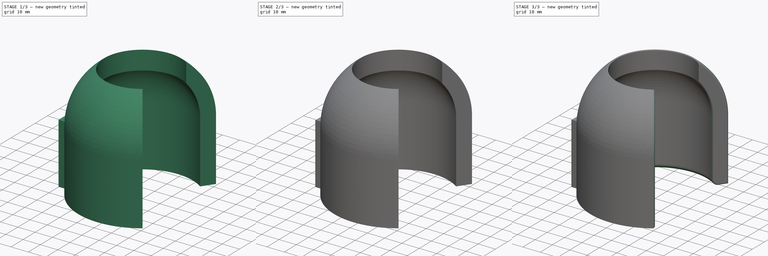
[diagram: build sequence overview — one tinted view per stage of 3, left to right]
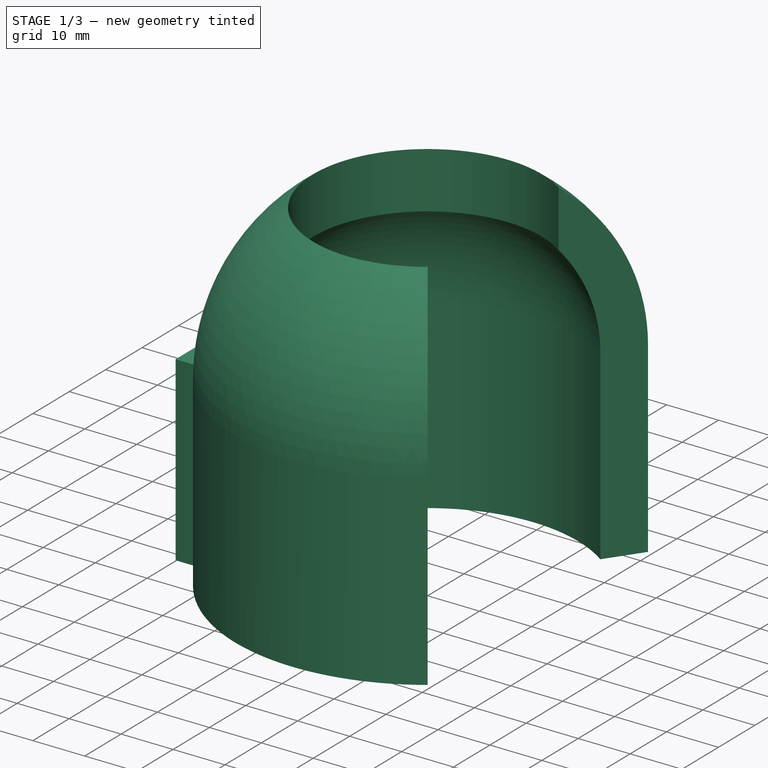
[diagram: stage 1 of 3 — iso view after this stage's code; geometry added in this stage tinted green]
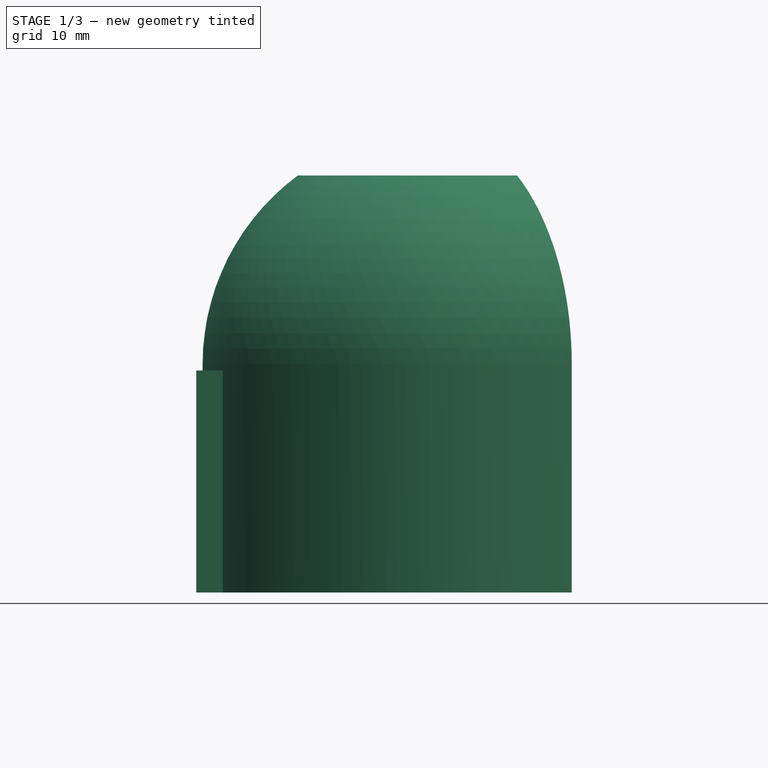
[diagram: stage 1 of 3 — front view after this stage's code; geometry added in this stage tinted green]
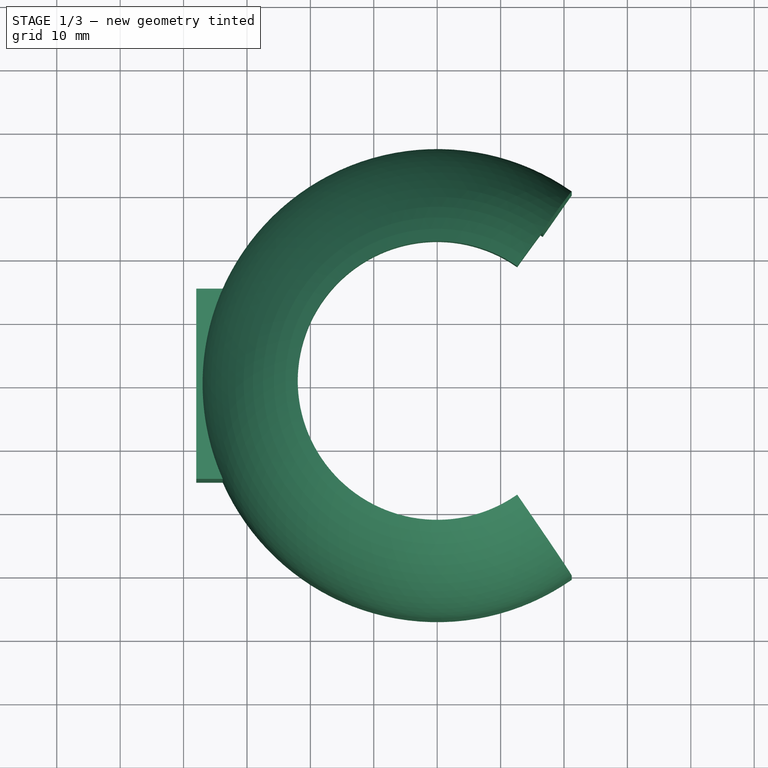
[diagram: stage 1 of 3 — top view after this stage's code; geometry added in this stage tinted green]
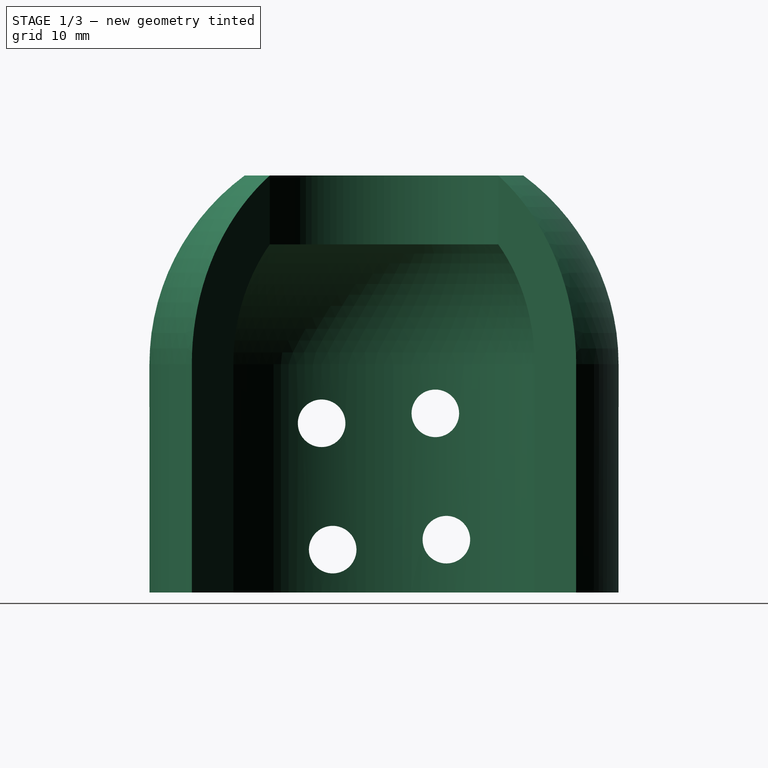
[diagram: stage 1 of 3 — right view after this stage's code; geometry added in this stage tinted green]
FCSTD DOCUMENT  (FreeCAD 0.20R29177 +426 (Git))
Label: maglite_car_holder
License: All rights reserved
LicenseURL: http://en.wikipedia.org/wiki/All_rights_reserved
objects: Sketcher::SketchObject×4, PartDesign::Fillet×4, PartDesign::Pad×2, PartDesign::Revolution×1, PartDesign::Pocket×1, PartDesign::Body×1
note: 21 computed .brp shape members not serialized (recipe doc carries the construction recipe); baked Part::Feature solids carry a one-line shape summary decoded from their .brp

FEATURE [Sketcher::SketchObject] Sketch
  FullyConstrained = true
  MapMode = 5
  Placement = pos=(0,0,0) rot=(1,0,0;1.5708rad)
  Support = -> [XZ_Plane]
  sketch-geometry (9):
    g0: LineSegment StartX=-37 StartY=36 StartZ=0 EndX=-37 EndY=0 EndZ=0
    g1: LineSegment StartX=-37 StartY=0 StartZ=0 EndX=-29 EndY=0 EndZ=0
    g2: LineSegment StartX=-29 StartY=0 StartZ=0 EndX=-29 EndY=36 EndZ=0
    g3: LineSegment StartX=-22 StartY=65.7489 StartZ=0 EndX=-22 EndY=54.8944 EndZ=0
    g4: ArcOfCircle CenterX=0 CenterY=36 CenterZ=0 NormalX=0 NormalY=0 NormalZ=1 AngleXU=0 Radius=29 StartAngle=2.43199 EndAngle=3.14159
    g5: ArcOfCircle CenterX=0 CenterY=36 CenterZ=0 NormalX=0 NormalY=0 NormalZ=1 AngleXU=0 Radius=37 StartAngle=2.20756 EndAngle=3.14159
    g6: LineSegment StartX=-29 StartY=36 StartZ=0 EndX=0 EndY=36 EndZ=0
    g7: LineSegment StartX=0 StartY=36 StartZ=0 EndX=-37 EndY=36 EndZ=0
    g8: LineSegment StartX=-22 StartY=54.8944 StartZ=0 EndX=0 EndY=54.8944 EndZ=0
  constraints (25):
    c: PointOnObject(g0,g-1)
    c: Vertical(g0)
    c: Coincident(g1,g0)
    c: PointOnObject(g1,g-1)
    c: Coincident(g2,g1)
    c: DistanceX(g1,g-1) = 29
    c: Vertical(g3)
    c: PointOnObject(g4,g-2)
    c: Coincident(g4,g3)
    c: PointOnObject(g5,g-2)
    c: Coincident(g5,g3)
    c: Coincident(g6,g2)
    c: Coincident(g6,g4)
    c: Coincident(g7,g5)
    c: Coincident(g7,g0)
    c: Tangent(g4,g2) = 1.5708
    c: Tangent(g5,g0) = -1.5708
    c: Coincident(g8,g3)
    c: PointOnObject(g8,g-2)
    c: Horizontal(g8)
    c: DistanceX(g8,g8) = 22
    c: Tangent(g6,g7)
    c: DistanceY(g2,g2) = 36
    c: DistanceY(g4,g8) = 18.8944
    c: DistanceX(g1,g1) = 8
FEATURE [PartDesign::Revolution] Revolution
  Angle = 250
  Axis = (0,-2e-16,1)
  Base = (0,0,0)
  Midplane = true
  Placement = pos=(0,0,0) rot=(1,0,0;1.5708rad)
  Profile = -> Sketch
  ReferenceAxis = -> Sketch [V_Axis]
FEATURE [Sketcher::SketchObject] Sketch001
  ExternalGeometry = -> [Revolution]
  FullyConstrained = true
  MapMode = 5
  Placement = pos=(0,0,0) rot=(1,0,0;3.14159rad)
  Support = -> [Revolution]
  sketch-geometry (5):
    g0: LineSegment StartX=-38 StartY=15 StartZ=0 EndX=-33.8231 EndY=15 EndZ=0
    g1: LineSegment StartX=-33.8231 StartY=15 StartZ=0 EndX=-33.8231 EndY=-15 EndZ=0
    g2: LineSegment StartX=-33.8231 StartY=-15 StartZ=0 EndX=-38 EndY=-15 EndZ=0
    g3: LineSegment StartX=-38 StartY=-15 StartZ=0 EndX=-38 EndY=15 EndZ=0
    g4: LineSegment StartX=-37 StartY=0 StartZ=0 EndX=-38 EndY=0 EndZ=0
  constraints (15):
    c: Coincident(g0,g1)
    c: Coincident(g1,g2)
    c: Coincident(g2,g3)
    c: Coincident(g3,g0)
    c: Horizontal(g0)
    c: Horizontal(g2)
    c: Vertical(g1)
    c: Vertical(g3)
    c: PointOnObject(g1,g-3)
    c: PointOnObject(g0,g-3)
    c: DistanceY(g3,g3) = 30
    c: PointOnObject(g4,g-3)
    c: PointOnObject(g4,g3)
    c: Tangent(g4,g-1)
    c: DistanceX(g4,g4) = 1
FEATURE [PartDesign::Pad] Pad
  BaseFeature = -> Revolution
  Direction = (0,2e-16,-1)
  Length = 35
  Length2 = 10
  Placement = pos=(0,0,0) rot=(1,0,0;1.5708rad)
  Profile = -> Sketch001
  ReferenceAxis = -> Sketch001 [N_Axis]
  Reversed = true
  Type = 0
FEATURE [Sketcher::SketchObject] Sketch002
  ExternalGeometry = -> [Pad]
  FullyConstrained = true
  MapMode = 5
  Placement = pos=(-38,0,0) rot=(0.707107,0,-0.707107;3.14159rad)
  Support = -> [Pad]
  expr: Constraints[26] = 180 - 5
  sketch-geometry (12):
    g0: Circle CenterX=-26.6775 CenterY=9.83731 CenterZ=0 NormalX=0 NormalY=0 NormalZ=1 AngleXU=0 Radius=3.75
    g1: Circle CenterX=-6.75365 CenterY=8.09419 CenterZ=0 NormalX=0 NormalY=0 NormalZ=1 AngleXU=0 Radius=3.75
    g2: Circle CenterX=-28.2463 CenterY=-8.09419 CenterZ=0 NormalX=0 NormalY=0 NormalZ=1 AngleXU=0 Radius=3.75
    g3: Circle CenterX=-8.32245 CenterY=-9.83731 CenterZ=0 NormalX=0 NormalY=0 NormalZ=1 AngleXU=0 Radius=3.75
    g4: LineSegment StartX=-26.6775 StartY=9.83731 StartZ=0 EndX=-6.75365 EndY=8.09419 EndZ=0
    g5: LineSegment StartX=-6.75365 StartY=8.09419 StartZ=0 EndX=-8.32245 EndY=-9.83731 EndZ=0
    g6: LineSegment StartX=-8.32245 StartY=-9.83731 StartZ=0 EndX=-28.2463 EndY=-8.09419 EndZ=0
    g7: LineSegment StartX=-28.2463 StartY=-8.09419 StartZ=0 EndX=-26.6775 EndY=9.83731 EndZ=0
    g8: LineSegment StartX=-27.4619 StartY=0.871557 StartZ=0 EndX=-7.53805 EndY=-0.871557 EndZ=0
    g9: LineSegment StartX=-17.5 StartY=15 StartZ=0 EndX=-17.5 EndY=-15 EndZ=0
    g10: LineSegment StartX=-35 StartY=-9.1e-15 StartZ=0 EndX=0 EndY=-2.4e-15 EndZ=0
    g11: GeomPoint X=-17.5 Y=-5.8e-15 Z=0
  constraints (27):
    c: Coincident(g4,g5)
    c: Coincident(g5,g6)
    c: Coincident(g6,g7)
    c: Coincident(g7,g4)
    c: Coincident(g4,g0)
    c: Coincident(g5,g3)
    c: Coincident(g2,g6)
    c: Coincident(g1,g4)
    c: Equal(g0,g1)
    c: Equal(g1,g3)
    c: Equal(g3,g2)
    c: Diameter(g0) = 7.5
    c: Perpendicular(g6,g7)
    c: Parallel(g7,g5)
    c: Parallel(g4,g6)
    c: Distance(g4) = 20
    c: Distance(g7) = 18
    c: Symmetric(g1,g3,g8)
    c: Symmetric(g0,g2,g8)
    c: Symmetric(g-4,g-3,g9)
    c: Symmetric(g-5,g-5,g9)
    c: Symmetric(g-5,g-3,g10)
    c: Symmetric(g-5,g-4,g10)
    c: Symmetric(g8,g8,g11)
    c: PointOnObject(g11,g10)
    c: PointOnObject(g11,g9)
    c: Angle(g10,g8) = 3.05433
FEATURE [PartDesign::Pocket] Pocket
  BaseFeature = -> Pad
  Direction = (1,0,2e-16)
  Length = 5
  Length2 = 5
  Placement = pos=(0,0,0) rot=(1,0,0;1.5708rad)
  Profile = -> Sketch002
  ReferenceAxis = -> Sketch002 [N_Axis]
  Type = 2
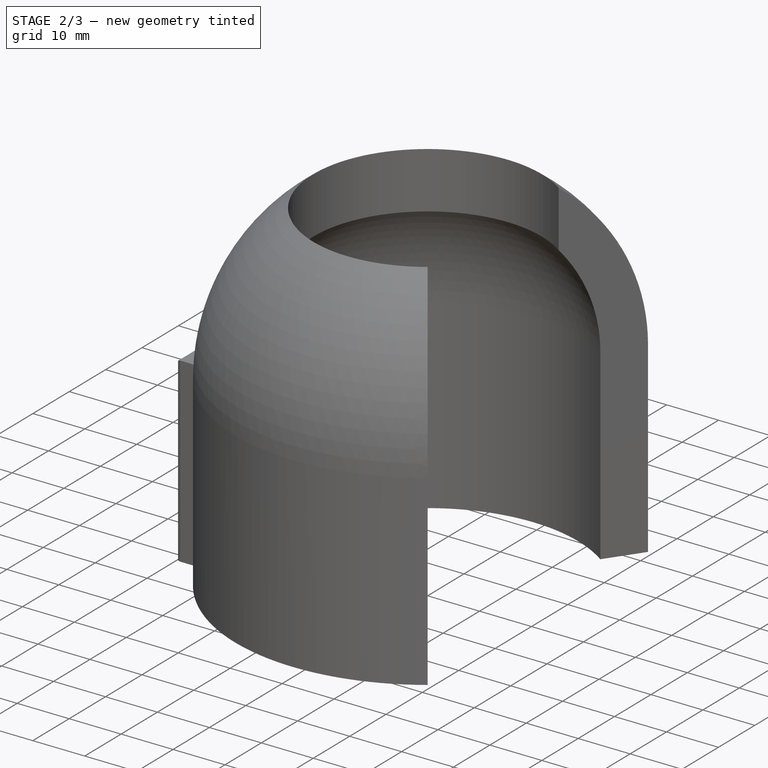
[diagram: stage 2 of 3 — iso view after this stage's code; geometry added in this stage tinted green]
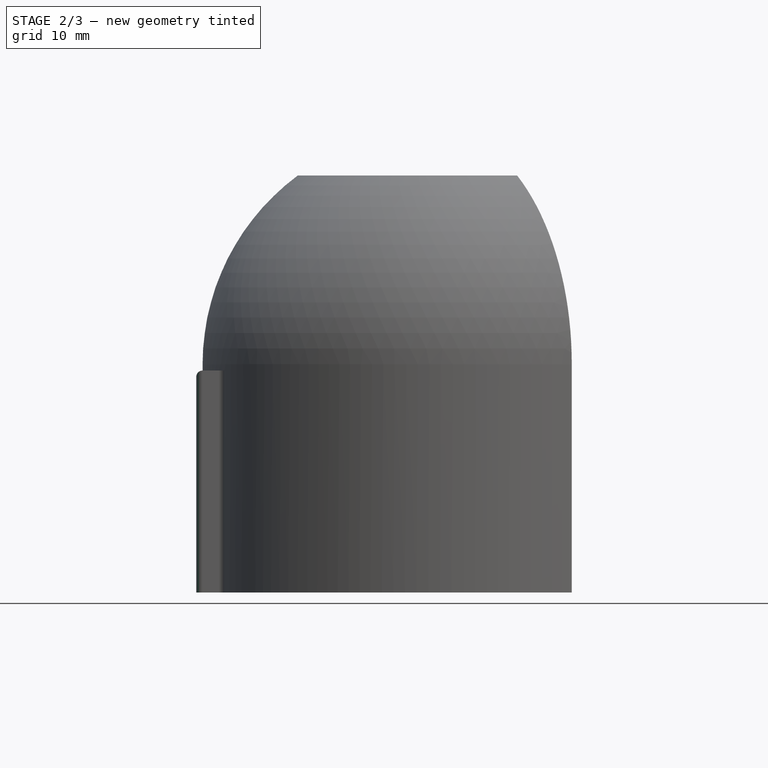
[diagram: stage 2 of 3 — front view after this stage's code; geometry added in this stage tinted green]
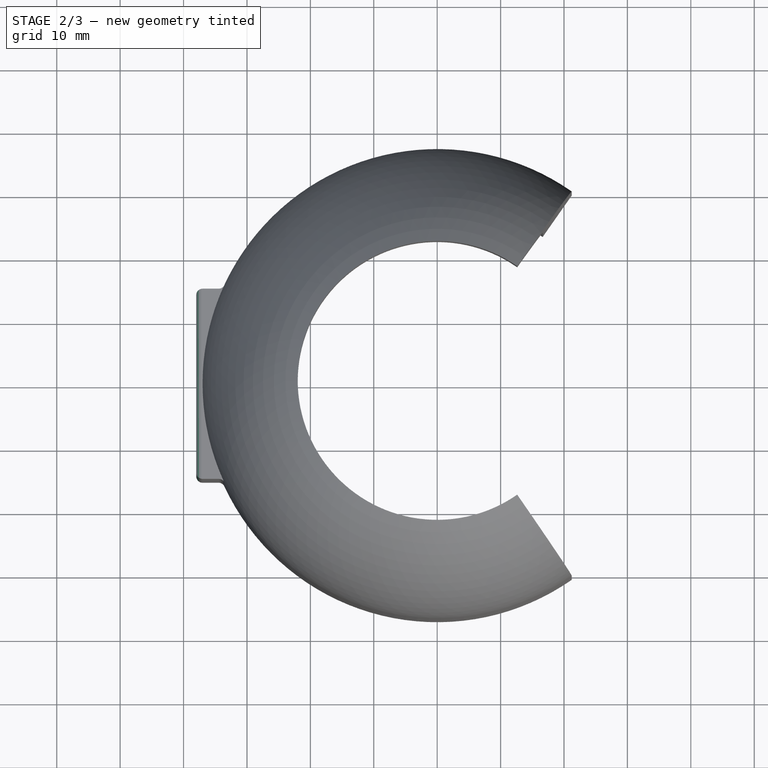
[diagram: stage 2 of 3 — top view after this stage's code; geometry added in this stage tinted green]
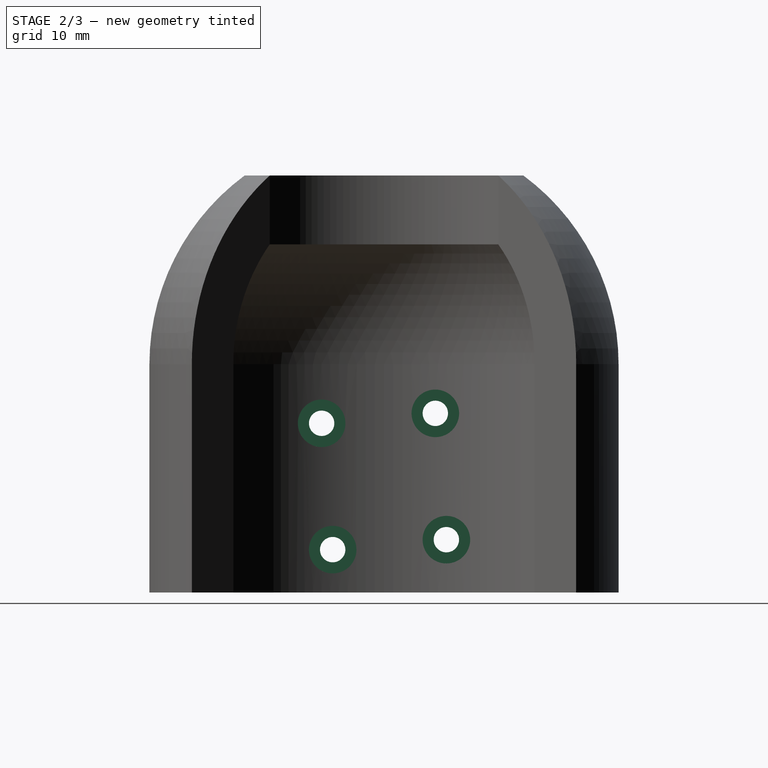
[diagram: stage 2 of 3 — right view after this stage's code; geometry added in this stage tinted green]
FEATURE [Sketcher::SketchObject] Sketch003
  ExternalGeometry = -> [Pocket]
  FullyConstrained = true
  MapMode = 5
  Placement = pos=(-38,0,0) rot=(0.707107,0,-0.707107;3.14159rad)
  Support = -> [Pocket]
  sketch-geometry (8):
    g0: Circle CenterX=-26.6775 CenterY=9.83731 CenterZ=0 NormalX=0 NormalY=0 NormalZ=1 AngleXU=0 Radius=3.75
    g1: Circle CenterX=-26.6775 CenterY=9.83731 CenterZ=0 NormalX=0 NormalY=0 NormalZ=1 AngleXU=0 Radius=2
    g2: Circle CenterX=-6.75365 CenterY=8.09419 CenterZ=0 NormalX=0 NormalY=0 NormalZ=1 AngleXU=0 Radius=2
    g3: Circle CenterX=-6.75365 CenterY=8.09419 CenterZ=0 NormalX=0 NormalY=0 NormalZ=1 AngleXU=0 Radius=3.75
    g4: Circle CenterX=-28.2463 CenterY=-8.09419 CenterZ=0 NormalX=0 NormalY=0 NormalZ=1 AngleXU=0 Radius=2
    g5: Circle CenterX=-28.2463 CenterY=-8.09419 CenterZ=0 NormalX=0 NormalY=0 NormalZ=1 AngleXU=0 Radius=3.75
    g6: Circle CenterX=-8.32245 CenterY=-9.83731 CenterZ=0 NormalX=0 NormalY=0 NormalZ=1 AngleXU=0 Radius=2
    g7: Circle CenterX=-8.32245 CenterY=-9.83731 CenterZ=0 NormalX=0 NormalY=0 NormalZ=1 AngleXU=0 Radius=3.75
  constraints (16):
    c: Coincident(g0,g-3)
    c: Coincident(g1,g0)
    c: Coincident(g2,g-4)
    c: Coincident(g3,g2)
    c: Coincident(g4,g-5)
    c: Coincident(g5,g4)
    c: Coincident(g6,g-6)
    c: Coincident(g7,g6)
    c: Equal(g3,g-4)
    c: Equal(g-5,g5)
    c: Equal(g7,g-6)
    c: Equal(g1,g2)
    c: Equal(g2,g4)
    c: Equal(g4,g6)
    c: Diameter(g1) = 4
    c: Equal(g0,g-3)
FEATURE [PartDesign::Pad] Pad001
  BaseFeature = -> Pocket
  Direction = (-1,0,-2e-16)
  Length = 4
  Length2 = 10
  Placement = pos=(0,0,0) rot=(1,0,0;1.5708rad)
  Profile = -> Sketch003
  ReferenceAxis = -> Sketch003 [N_Axis]
  Reversed = true
  Type = 0
FEATURE [PartDesign::Fillet] Fillet
  Base = -> Pad001 [Edge24,Edge10,Edge12,Edge29,Edge27]
  BaseFeature = -> Pad001
  Placement = pos=(0,0,0) rot=(1,0,0;1.5708rad)
  Radius = 1
  SupportTransform = false
  UseAllEdges = false
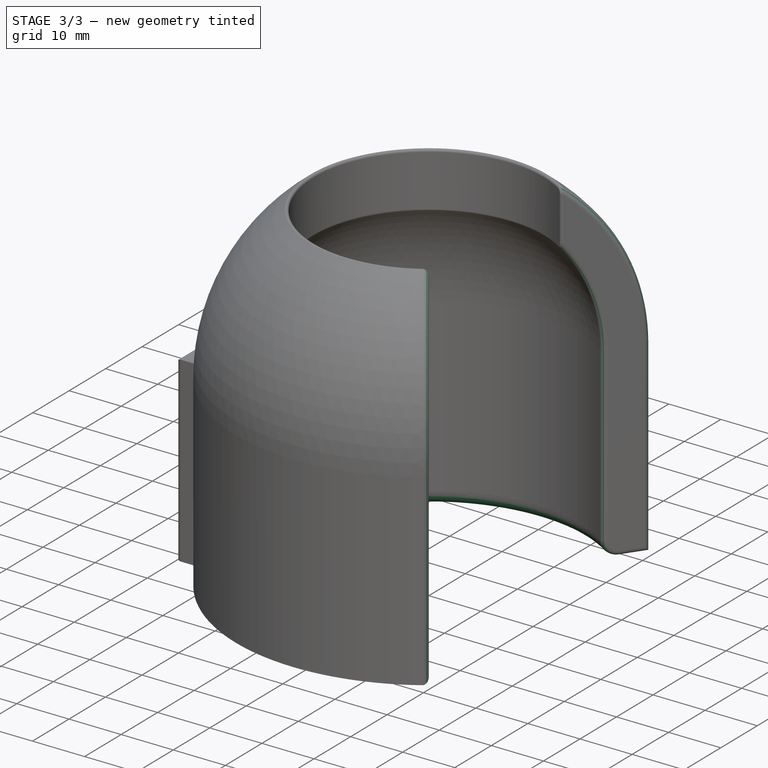
[diagram: stage 3 of 3 — iso view after this stage's code; geometry added in this stage tinted green]
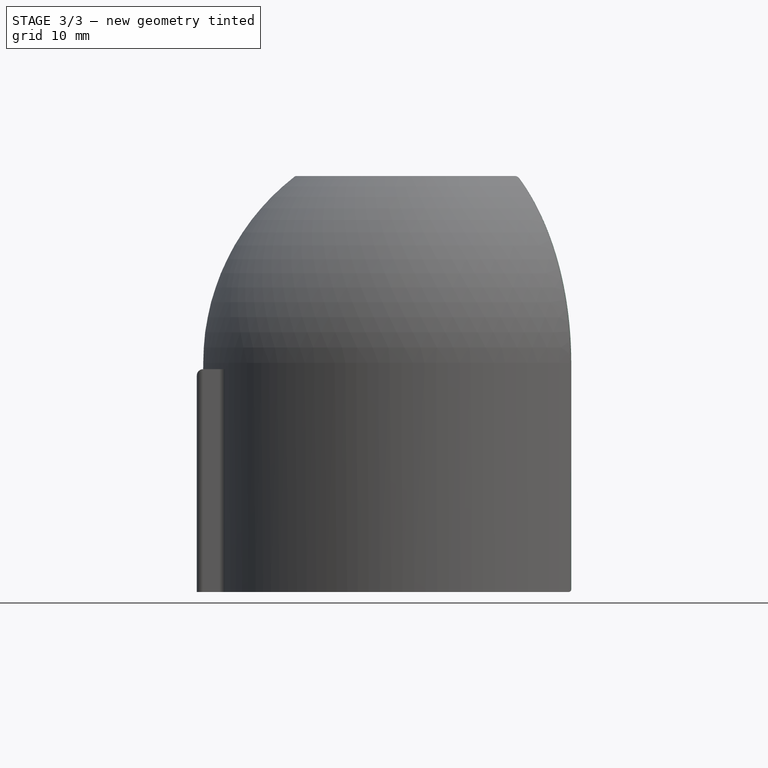
[diagram: stage 3 of 3 — front view after this stage's code; geometry added in this stage tinted green]
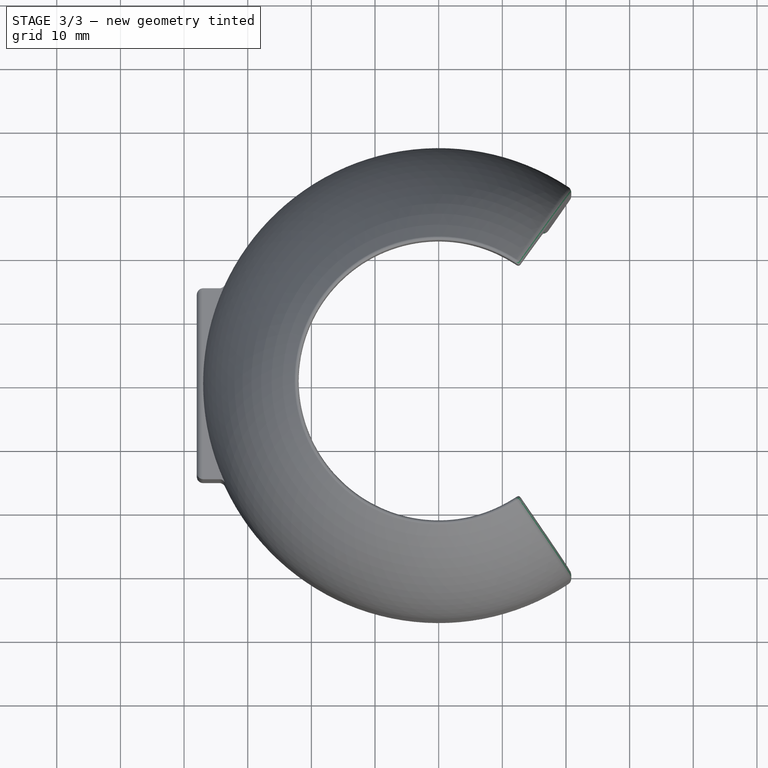
[diagram: stage 3 of 3 — top view after this stage's code; geometry added in this stage tinted green]
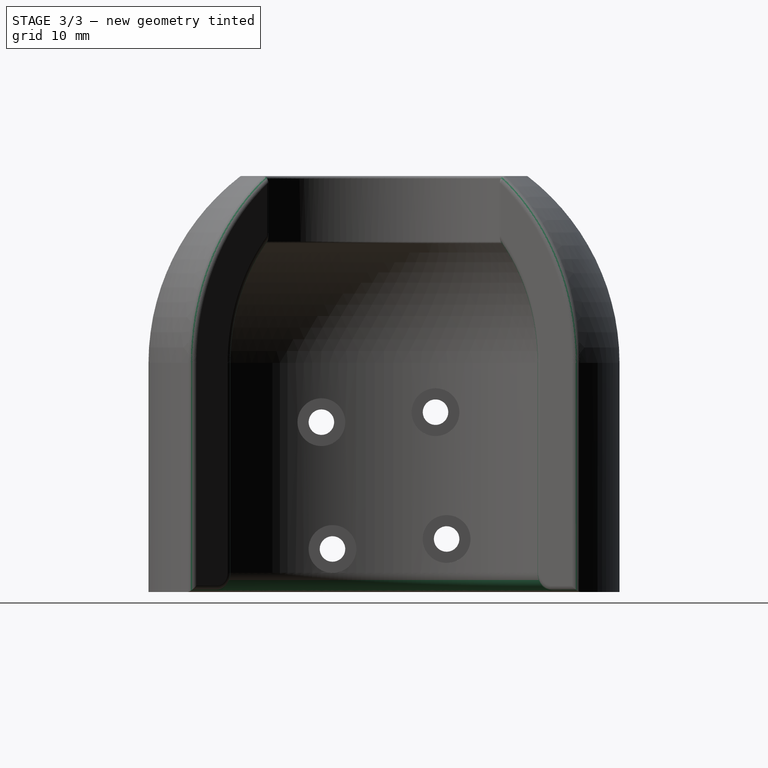
[diagram: stage 3 of 3 — right view after this stage's code; geometry added in this stage tinted green]
FEATURE [PartDesign::Fillet] Fillet001
  Base = -> Fillet [Edge13]
  BaseFeature = -> Fillet
  Placement = pos=(0,0,0) rot=(1,0,0;1.5708rad)
  Radius = 3
  SupportTransform = false
  UseAllEdges = false
FEATURE [PartDesign::Fillet] Fillet002
  Base = -> Fillet001 [Edge17,Edge26,Edge27,Edge25,Edge11,Edge13,Edge12,Edge10]
  BaseFeature = -> Fillet001
  Placement = pos=(0,0,0) rot=(1,0,0;1.5708rad)
  Radius = 1
  SupportTransform = false
  UseAllEdges = false
FEATURE [PartDesign::Fillet] Fillet003
  Base = -> Fillet002 [Edge86]
  BaseFeature = -> Fillet002
  Placement = pos=(0,0,0) rot=(1,0,0;1.5708rad)
  Radius = 0.4
  SupportTransform = false
  UseAllEdges = false
FEATURE [PartDesign::Body] Body
  Group = -> [Sketch,Revolution,Sketch001,Pad,Sketch002,Pocket,Sketch003,Pad001,Fillet,Fillet001,Fillet002,Fillet003]
  Origin = -> Origin
  Tip = -> Fillet003
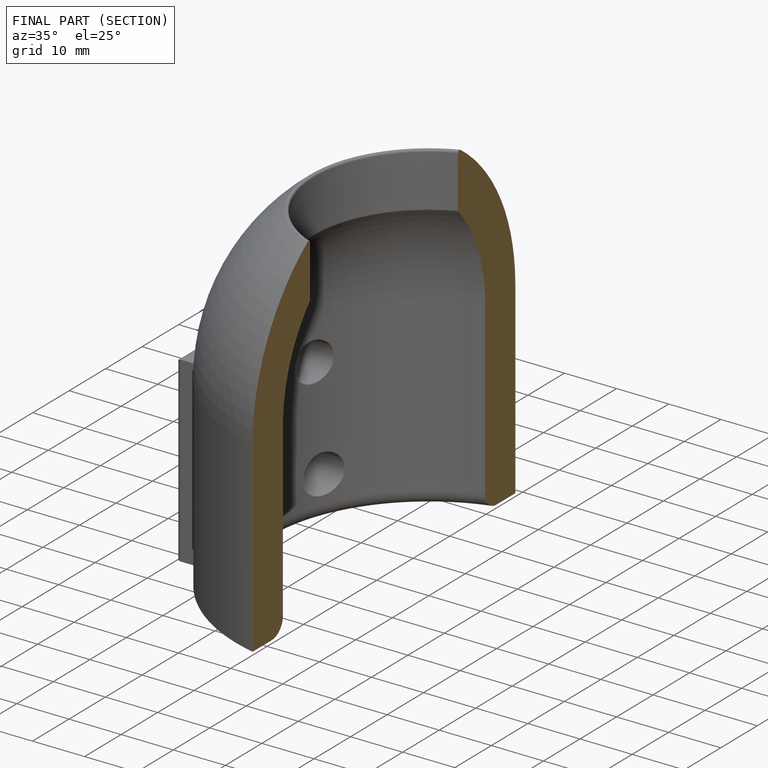
[diagram: finished part — half-section view (interior)]
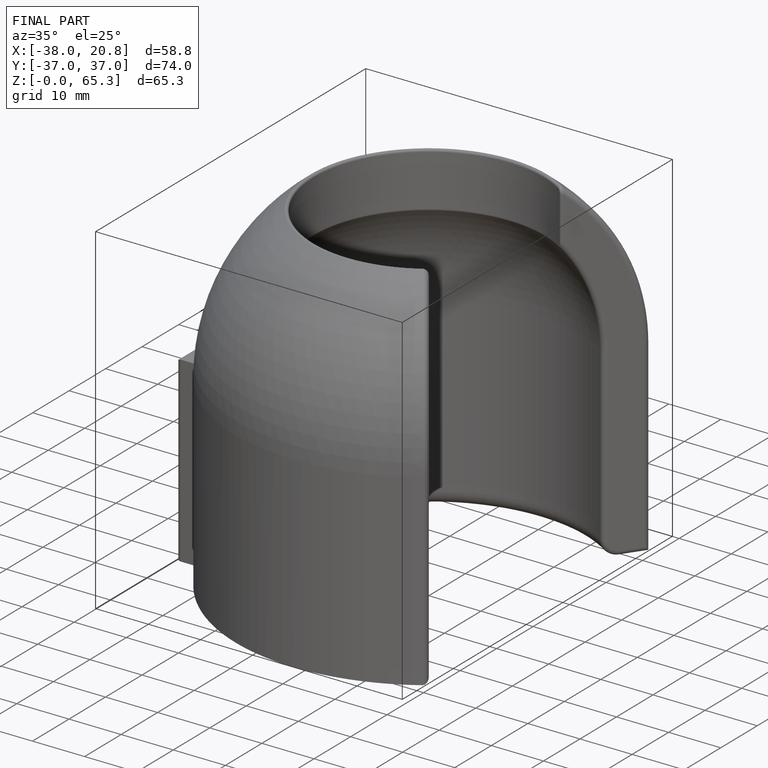
[diagram: finished part — iso view with bounding-box wireframe]
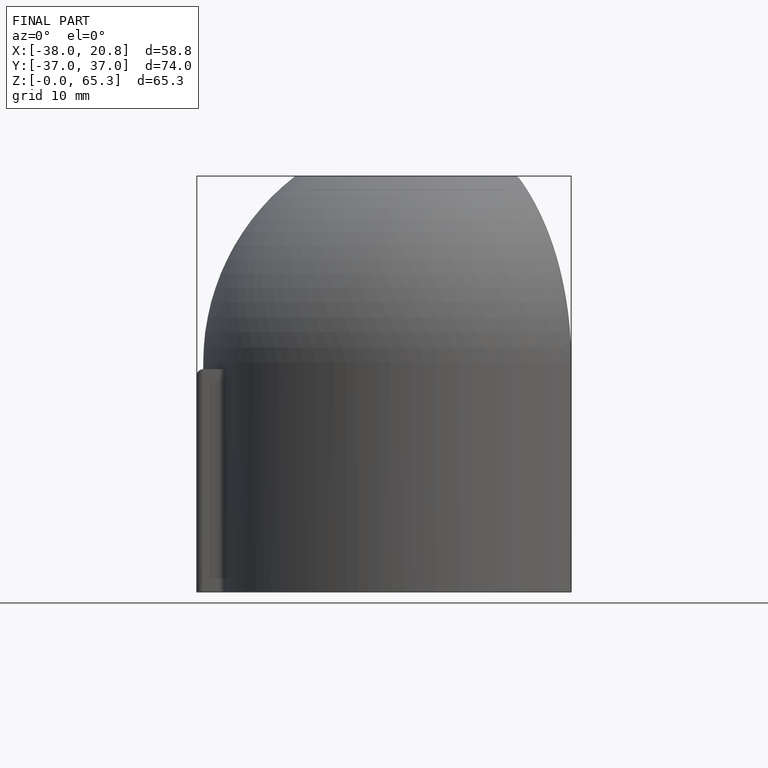
[diagram: finished part — front view with bounding-box wireframe]
